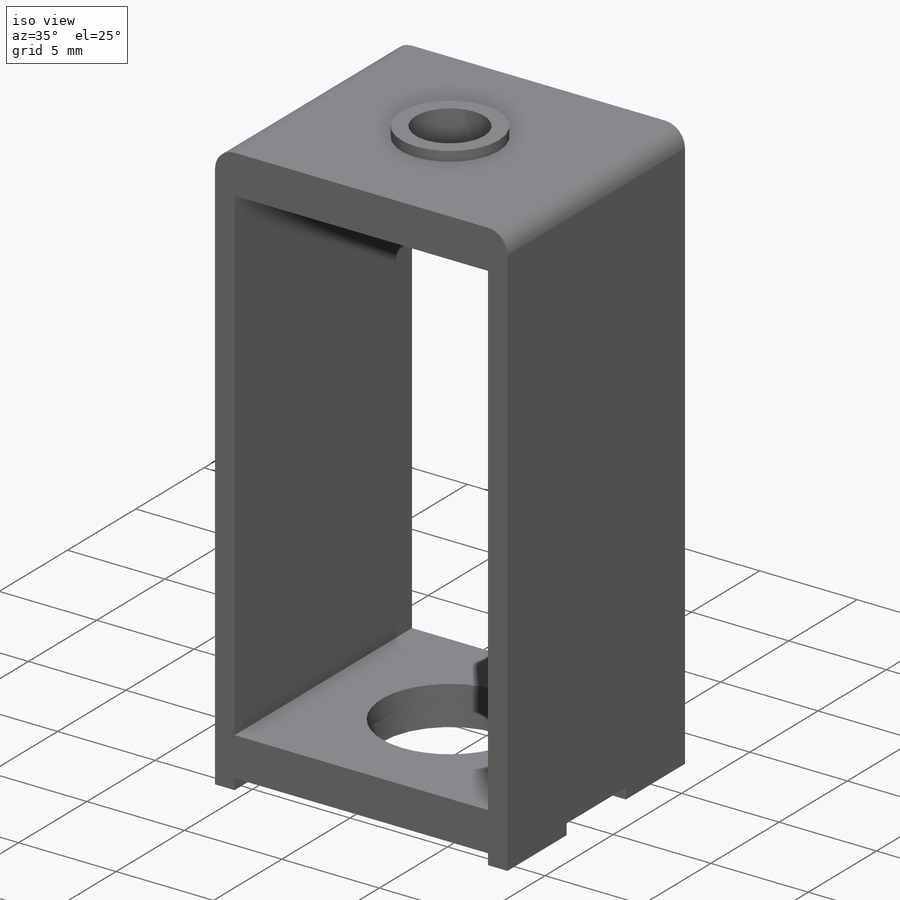
[diagram: iso view]
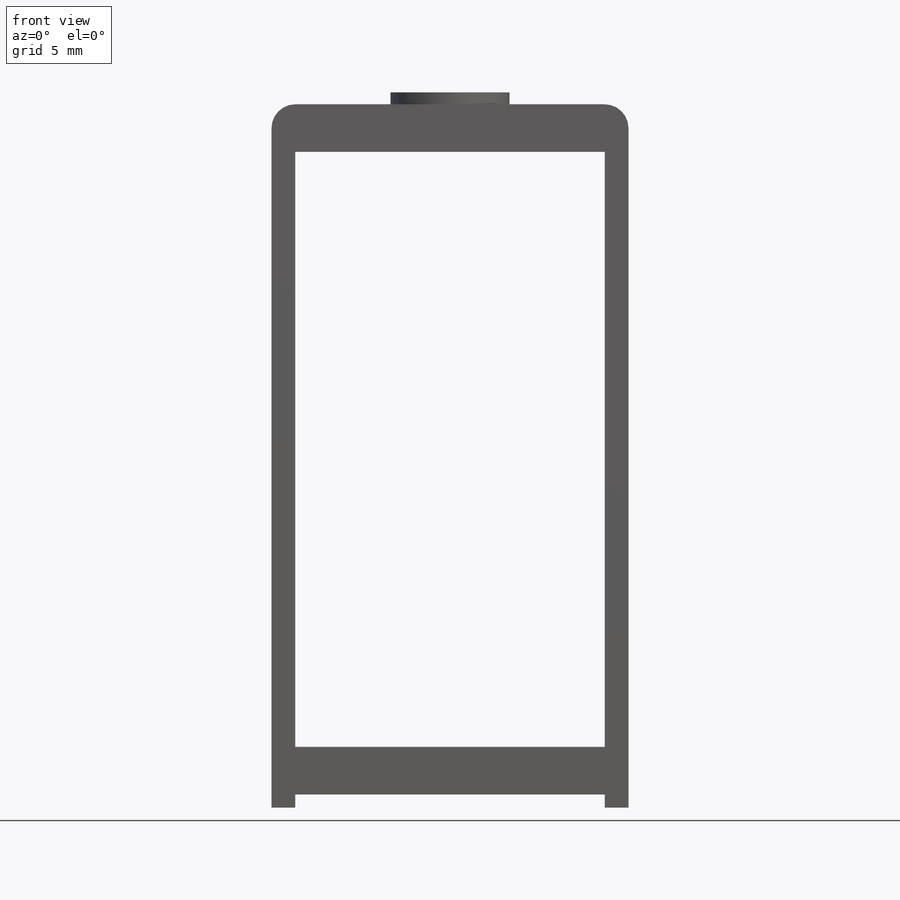
[diagram: front view]
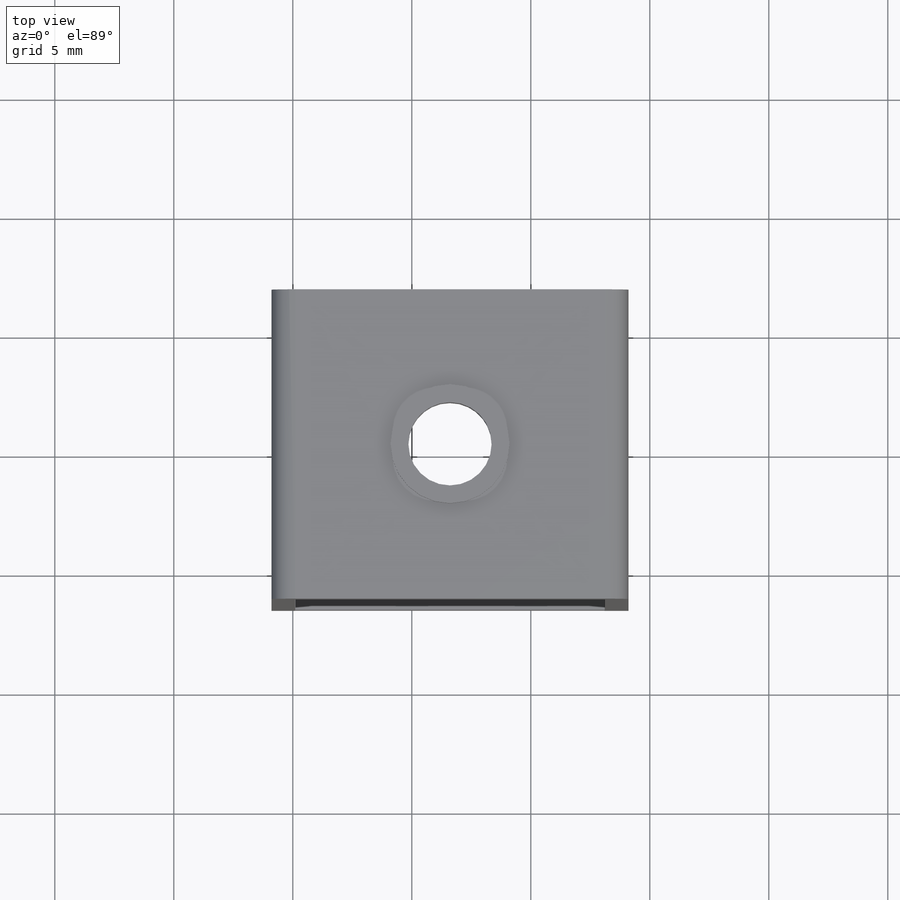
[diagram: top view]
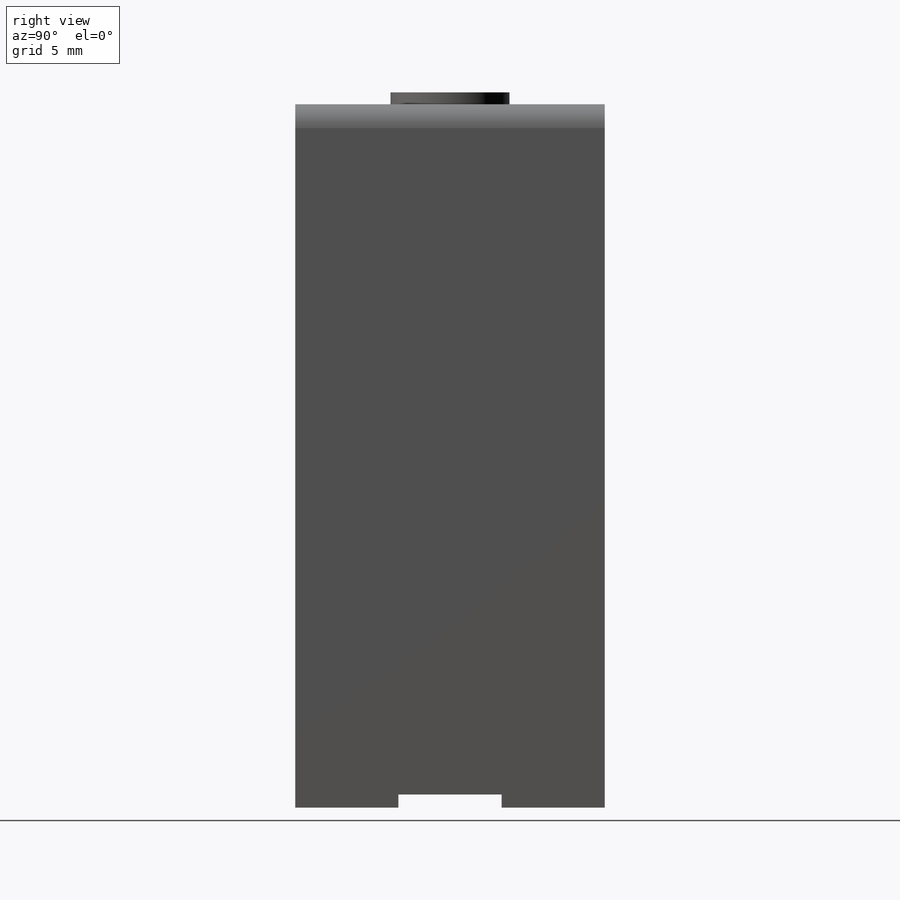
[diagram: right view]
SOLIDWORKS PART (.sldprt)
format: sldprt  version: not decoded by parser v0  size: 256,000 bytes
history: native  units: mm
features: sketch x9, extrude x7, fillet x2, cut_extrude x2, material x1 (+13 scaffold rows collapsed)
feature tree (34):
  scaffold x13  (default folders/planes/origin — collapsed)
  material  "Material <not specified>"
  sketch  "Sketch1"  dims[D1=13.0mm D2=15.0mm]
  extrude  "Boss-Extrude1"  Depth=1mm
  sketch  "Sketch2"  dims[D1=1.0mm D2=1.0mm]
  extrude  "Boss-Extrude2"  Depth=27mm
  sketch  "Sketch3"
  extrude  "Boss-Extrude3"  Depth=1mm
  fillet  "Fillet1"  Radius=1mm
  fillet  "Fillet2"  Radius=1mm
  sketch  "Sketch4"  dims[D1=1.0mm D2=4.33mm D3=1.0mm D4=4.33mm D5=1.0mm D6=4.33mm D7=1.0mm D8=4.33mm]
  extrude  "Boss-Extrude4"  Depth=0.55mm
  sketch  "Sketch5"
  extrude  "Boss-Extrude5"  Depth=1mm
  sketch  "Sketch7"
  extrude  "Boss-Extrude6"  Depth=1mm
  sketch  "Sketch8"  dims[D1=7.0mm]
  cut_extrude  "Cut-Extrude1"  [1 undecoded]
  sketch  "Sketch9"  dims[D1=3.5mm]
  cut_extrude  "Cut-Extrude2"  [1 undecoded]
  sketch  "Sketch10"  dims[D1=0.75mm]
  extrude  "Boss-Extrude7"  Depth=0.5mm
decode coverage: 15 of 20 modeling features carry decoded parameters
note: 2 parameter values undecoded
note: suppression state not decoded; provenance and decode notes live in map.json
